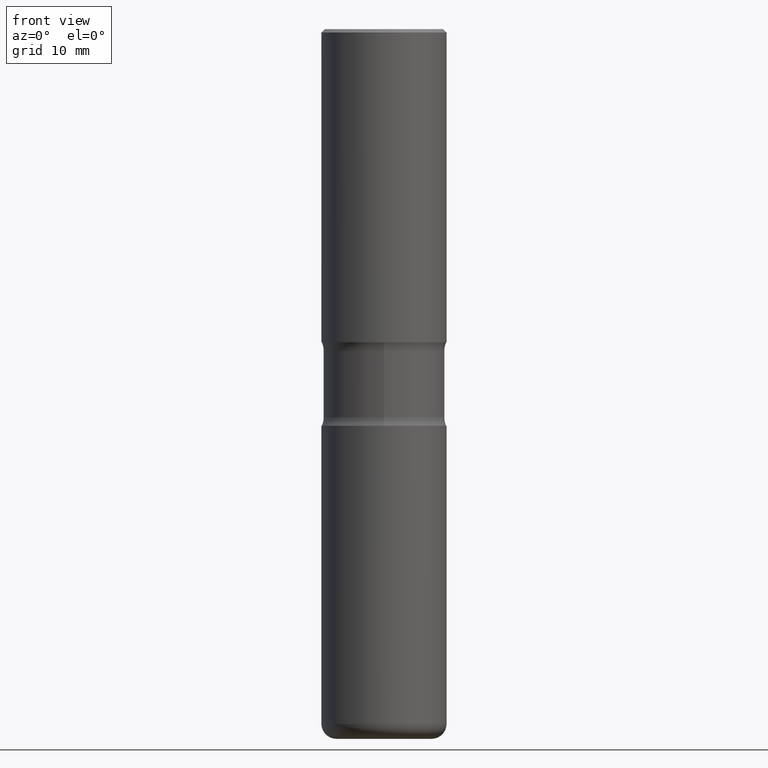
[diagram: clean part render]
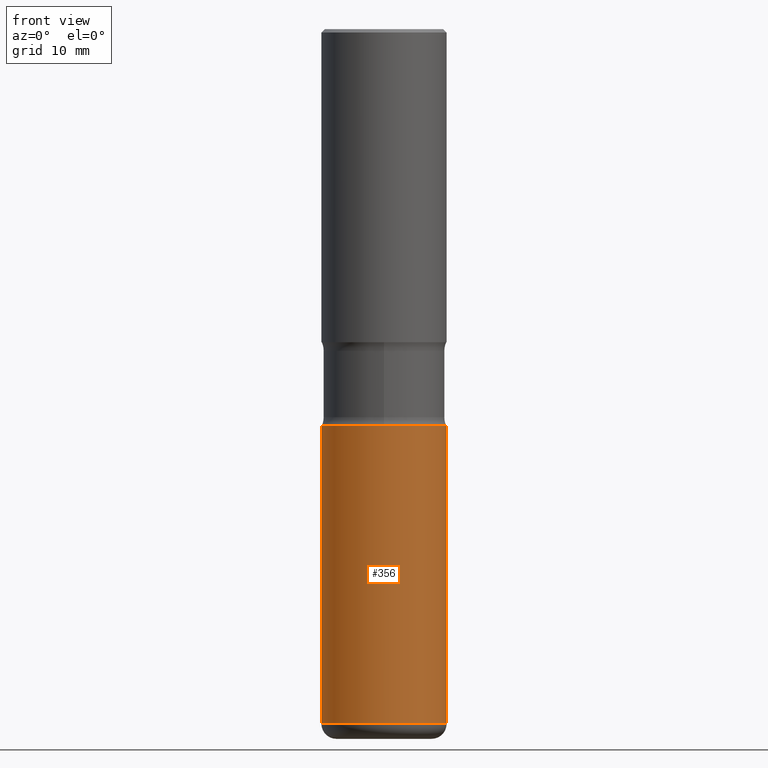
[diagram: same view with one face highlighted and labeled with its STEP entity id]
A machine part, front view. The second image highlights one B-rep face of the part: STEP entity #356.
In plain terms, the highlighted cylindrical surface (partial cylindrical patch) has radius 9.525 mm, axis along (-0, 0, 1).
Its self-contained STEP definition (entity closure, byte-faithful):
#6 = DIRECTION ( 'NONE',  ( 1.000000000000000000, -6.982962677686265922E-15, 4.876176775795935793E-29 ) ) ;
#11 = EDGE_LOOP ( 'NONE', ( #213, #389, #148, #196 ) ) ;
#37 = DIRECTION ( 'NONE',  ( -2.445468806185136597E-29, 3.491481338843145583E-15, 1.000000000000000000 ) ) ;
#38 = VERTEX_POINT ( 'NONE', #465 ) ;
#43 = VERTEX_POINT ( 'NONE', #73 ) ;
#53 = EDGE_CURVE ( 'NONE', #38, #43, #65, .T. ) ;
#65 = LINE ( 'NONE', #536, #357 ) ;
#73 = CARTESIAN_POINT ( 'NONE',  ( -0.3750000000000002776, -8.743880015569600564E-15, -2.375000000000000000 ) ) ;
#79 = EDGE_CURVE ( 'NONE', #38, #396, #319, .T. ) ;
#82 = DIRECTION ( 'NONE',  ( 1.000000000000000000, -6.982962677686265922E-15, 0.000000000000000000 ) ) ;
#104 = VECTOR ( 'NONE', #317, 39.37007874015748143 ) ;
#148 = ORIENTED_EDGE ( 'NONE', *, *, #399, .T. ) ;
#167 = DIRECTION ( 'NONE',  ( 1.000000000000000000, -6.982962677686265922E-15, 0.000000000000000000 ) ) ;
#172 = VERTEX_POINT ( 'NONE', #276 ) ;
#182 = CIRCLE ( 'NONE', #504, 0.3750000000000002776 ) ;
#186 = CARTESIAN_POINT ( 'NONE',  ( 0.3750000000000004996, -1.714317337371984031E-14, -4.160000000000000142 ) ) ;
#196 = ORIENTED_EDGE ( 'NONE', *, *, #266, .F. ) ;
#208 = DIRECTION ( 'NONE',  ( -2.445468806185136597E-29, 3.491481338843145583E-15, 1.000000000000000000 ) ) ;
#213 = ORIENTED_EDGE ( 'NONE', *, *, #53, .F. ) ;
#266 = EDGE_CURVE ( 'NONE', #43, #172, #182, .T. ) ;
#276 = CARTESIAN_POINT ( 'NONE',  ( 0.3750000000000002776, -1.091087918388482329E-14, -2.375000000000000000 ) ) ;
#305 = FACE_OUTER_BOUND ( 'NONE', #11, .T. ) ;
#317 = DIRECTION ( 'NONE',  ( -2.445468806185136877E-29, 3.491481338843145188E-15, 1.000000000000000000 ) ) ;
#319 = CIRCLE ( 'NONE', #437, 0.3750000000000003886 ) ;
#344 = CARTESIAN_POINT ( 'NONE',  ( 5.807988414689700538E-29, -8.292268179752471696E-15, -2.375000000000000000 ) ) ;
#346 = CARTESIAN_POINT ( 'NONE',  ( 1.017315023373016887E-28, -1.452456236958748398E-14, -4.160000000000000142 ) ) ;
#356 = ADVANCED_FACE ( 'NONE', ( #305 ), #436, .T. ) ;
#357 = VECTOR ( 'NONE', #374, 39.37007874015748143 ) ;
#358 = AXIS2_PLACEMENT_3D ( 'NONE', #446, #208, #6 ) ;
#374 = DIRECTION ( 'NONE',  ( -2.445468806185136877E-29, 3.491481338843145188E-15, 1.000000000000000000 ) ) ;
#389 = ORIENTED_EDGE ( 'NONE', *, *, #79, .T. ) ;
#396 = VERTEX_POINT ( 'NONE', #186 ) ;
#399 = EDGE_CURVE ( 'NONE', #396, #172, #525, .T. ) ;
#436 = CYLINDRICAL_SURFACE ( 'NONE', #358, 0.3750000000000003886 ) ;
#437 = AXIS2_PLACEMENT_3D ( 'NONE', #346, #474, #82 ) ;
#446 = CARTESIAN_POINT ( 'NONE',  ( 0.000000000000000000, 0.000000000000000000, 0.000000000000000000 ) ) ;
#465 = CARTESIAN_POINT ( 'NONE',  ( -0.3750000000000004996, -1.186002711048710513E-14, -4.160000000000000142 ) ) ;
#474 = DIRECTION ( 'NONE',  ( -2.445468806185136597E-29, 3.491481338843145583E-15, 1.000000000000000000 ) ) ;
#486 = CARTESIAN_POINT ( 'NONE',  ( 0.3750000000000003886, -2.618611004132352383E-15, 1.828566290923477884E-29 ) ) ;
#504 = AXIS2_PLACEMENT_3D ( 'NONE', #344, #37, #167 ) ;
#525 = LINE ( 'NONE', #486, #104 ) ;
#536 = CARTESIAN_POINT ( 'NONE',  ( -0.3750000000000003886, 2.664535259100378458E-15, -1.844600658845591560E-29 ) ) ;